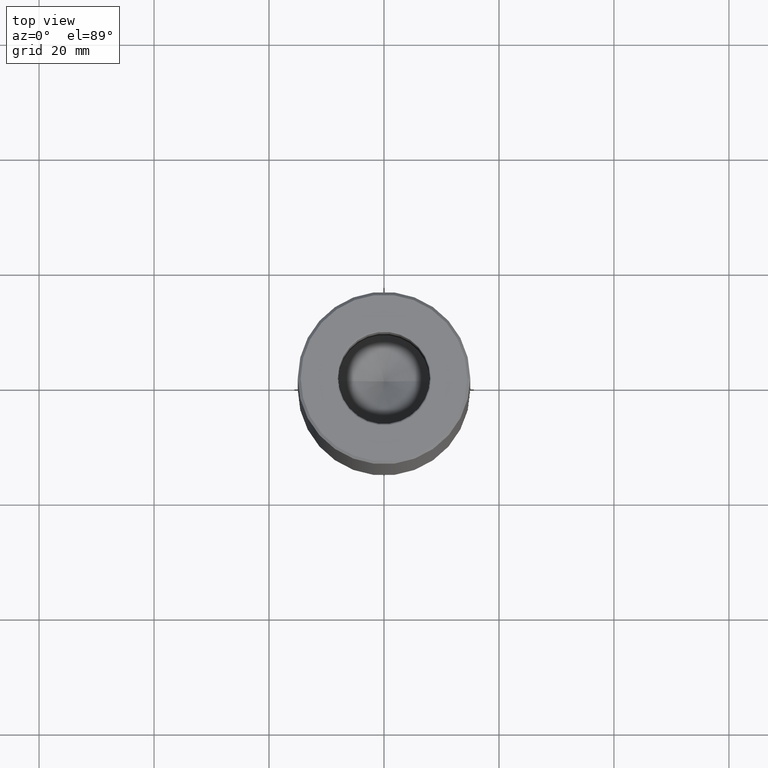
[diagram: clean part render]
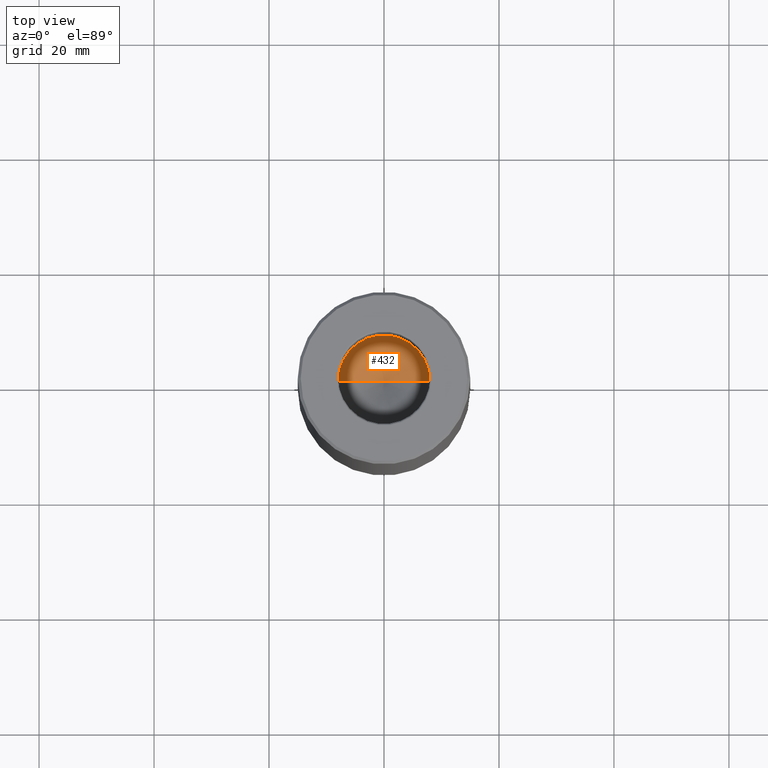
[diagram: same view with one face highlighted and labeled with its STEP entity id]
A machine part, top view. The second image highlights one B-rep face of the part: STEP entity #432.
In plain terms, the highlighted conical surface has half-angle 59 deg.
Its self-contained STEP definition (entity closure, byte-faithful):
#10 = CARTESIAN_POINT ( 'NONE',  ( -7.999999999999994671, 9.797174393178819741E-16, -30.00000000000000000 ) ) ;
#79 = DIRECTION ( 'NONE',  ( -0.000000000000000000, -0.000000000000000000, 1.000000000000000000 ) ) ;
#81 = DIRECTION ( 'NONE',  ( -0.000000000000000000, -0.000000000000000000, 1.000000000000000000 ) ) ;
#138 = CARTESIAN_POINT ( 'NONE',  ( -7.999999999999994671, 9.797174393178819741E-16, -30.00000000000000000 ) ) ;
#139 = VECTOR ( 'NONE', #560, 1000.000000000000000 ) ;
#147 = CIRCLE ( 'NONE', #408, 7.999999999999994671 ) ;
#161 = VECTOR ( 'NONE', #499, 1000.000000000000000 ) ;
#162 = LINE ( 'NONE', #10, #161 ) ;
#168 = VERTEX_POINT ( 'NONE', #250 ) ;
#174 = CARTESIAN_POINT ( 'NONE',  ( 7.999999999999994671, 0.000000000000000000, -30.00000000000000000 ) ) ;
#191 = VERTEX_POINT ( 'NONE', #138 ) ;
#250 = CARTESIAN_POINT ( 'NONE',  ( -8.296478875781655917E-15, 0.000000000000000000, -34.80688495222048573 ) ) ;
#313 = EDGE_LOOP ( 'NONE', ( #325, #559, #321 ) ) ;
#321 = ORIENTED_EDGE ( 'NONE', *, *, #470, .T. ) ;
#325 = ORIENTED_EDGE ( 'NONE', *, *, #385, .F. ) ;
#372 = CARTESIAN_POINT ( 'NONE',  ( 0.000000000000000000, 0.000000000000000000, -30.00000000000000000 ) ) ;
#378 = DIRECTION ( 'NONE',  ( 1.000000000000000000, 0.000000000000000000, 0.000000000000000000 ) ) ;
#385 = EDGE_CURVE ( 'NONE', #168, #191, #162, .T. ) ;
#402 = VERTEX_POINT ( 'NONE', #405 ) ;
#405 = CARTESIAN_POINT ( 'NONE',  ( 7.999999999999994671, 0.000000000000000000, -30.00000000000000000 ) ) ;
#408 = AXIS2_PLACEMENT_3D ( 'NONE', #372, #81, #474 ) ;
#420 = LINE ( 'NONE', #174, #139 ) ;
#429 = AXIS2_PLACEMENT_3D ( 'NONE', #520, #79, #378 ) ;
#432 = ADVANCED_FACE ( 'NONE', ( #614 ), #518, .F. ) ;
#470 = EDGE_CURVE ( 'NONE', #402, #191, #147, .T. ) ;
#474 = DIRECTION ( 'NONE',  ( 1.000000000000000000, 0.000000000000000000, 0.000000000000000000 ) ) ;
#499 = DIRECTION ( 'NONE',  ( -0.8571673007021117785, 1.049727191138617956E-16, 0.5150380749100550437 ) ) ;
#518 = CONICAL_SURFACE ( 'NONE', #429, 7.999999999999994671, 1.029744258676653423 ) ;
#520 = CARTESIAN_POINT ( 'NONE',  ( 0.000000000000000000, 0.000000000000000000, -30.00000000000000000 ) ) ;
#547 = EDGE_CURVE ( 'NONE', #168, #402, #420, .T. ) ;
#559 = ORIENTED_EDGE ( 'NONE', *, *, #547, .T. ) ;
#560 = DIRECTION ( 'NONE',  ( 0.8571673007021117785, 0.000000000000000000, 0.5150380749100550437 ) ) ;
#614 = FACE_OUTER_BOUND ( 'NONE', #313, .T. ) ;